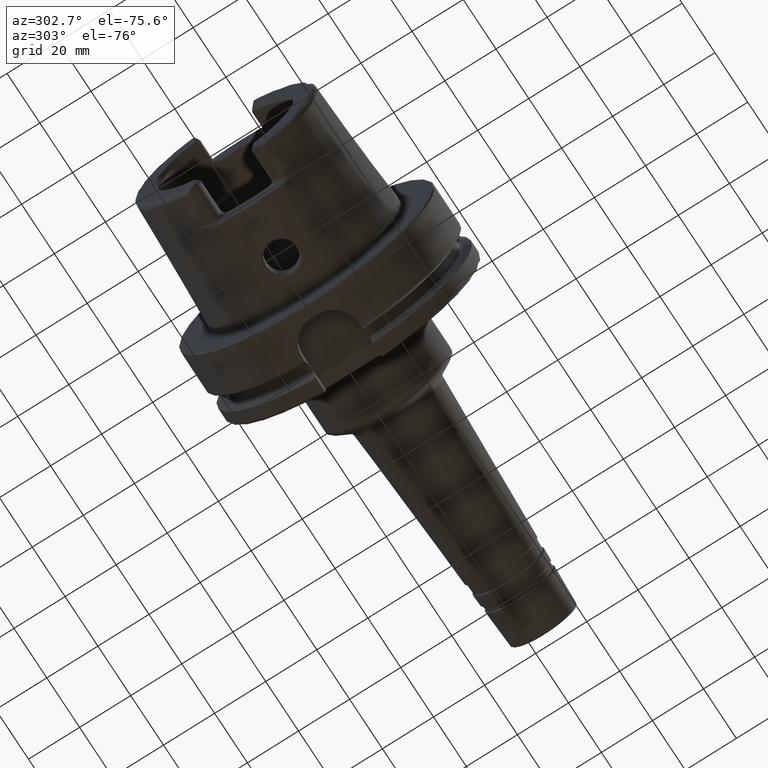
[diagram: clean part render]
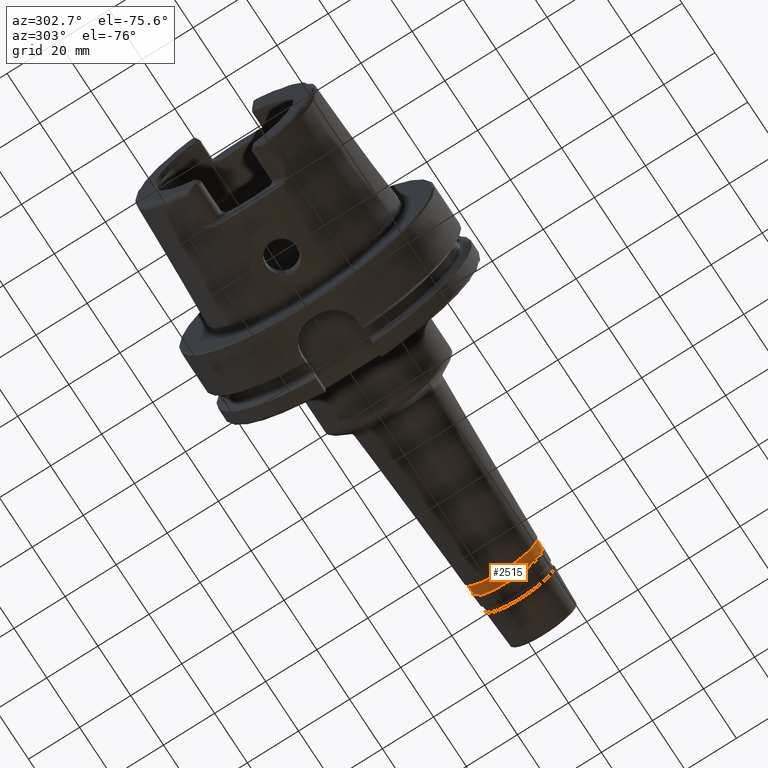
[diagram: same view with one face highlighted and labeled with its STEP entity id]
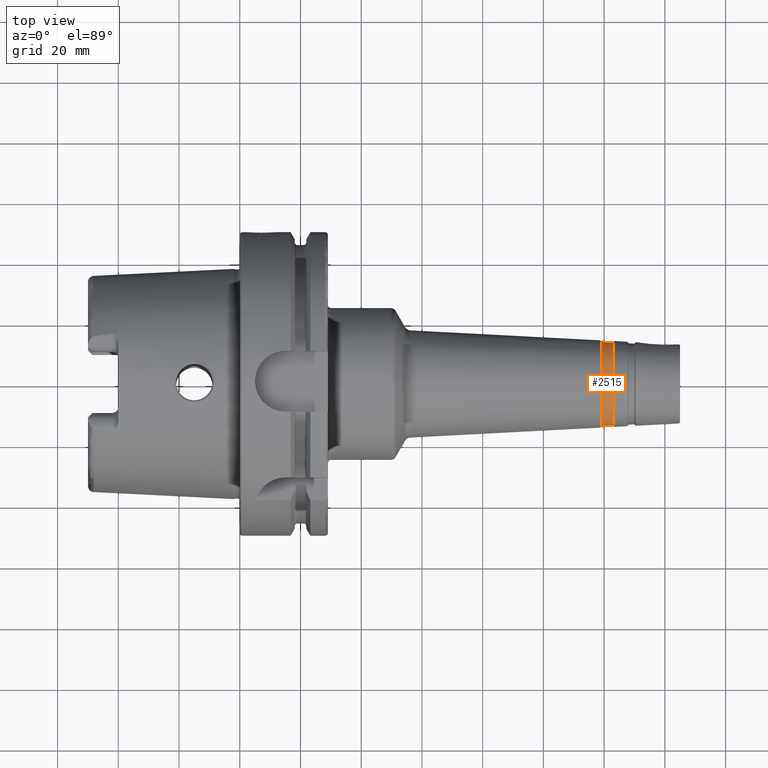
[diagram: same view with one face highlighted and labeled with its STEP entity id]
A machine part, auxiliary view. The second image highlights one B-rep face of the part: STEP entity #2515.
A second angle (top view) of the same face is appended — the face is thin or edge-on in the first view.
In plain terms, the highlighted conical surface has half-angle 3 deg.
Its self-contained STEP definition (entity closure, byte-faithful):
#96=CONICAL_SURFACE('',#2708,13.7564541224332,0.0523598775598297);
#178=LINE('',#3980,#292);
#292=VECTOR('',#3138,13.7564541224332);
#438=FACE_OUTER_BOUND('',#573,.T.);
#573=EDGE_LOOP('',(#1715,#1716,#1717,#1718,#1719,#1720,#1721,#1722));
#740=CIRCLE('',#2701,13.6578254456323);
#745=CIRCLE('',#2706,13.6578254456323);
#746=CIRCLE('',#2707,13.6578254456323);
#747=CIRCLE('',#2709,13.855082799234);
#748=CIRCLE('',#2710,13.855082799234);
#749=CIRCLE('',#2711,13.855082799234);
#971=VERTEX_POINT('',#3965);
#972=VERTEX_POINT('',#3966);
#976=VERTEX_POINT('',#3975);
#977=VERTEX_POINT('',#3979);
#978=VERTEX_POINT('',#3981);
#979=VERTEX_POINT('',#3983);
#1267=EDGE_CURVE('',#971,#972,#740,.T.);
#1272=EDGE_CURVE('',#972,#976,#745,.T.);
#1273=EDGE_CURVE('',#976,#971,#746,.T.);
#1274=EDGE_CURVE('',#976,#977,#178,.T.);
#1275=EDGE_CURVE('',#978,#977,#747,.T.);
#1276=EDGE_CURVE('',#979,#978,#748,.T.);
#1277=EDGE_CURVE('',#977,#979,#749,.T.);
#1715=ORIENTED_EDGE('',*,*,#1267,.F.);
#1716=ORIENTED_EDGE('',*,*,#1273,.F.);
#1717=ORIENTED_EDGE('',*,*,#1274,.T.);
#1718=ORIENTED_EDGE('',*,*,#1275,.F.);
#1719=ORIENTED_EDGE('',*,*,#1276,.F.);
#1720=ORIENTED_EDGE('',*,*,#1277,.F.);
#1721=ORIENTED_EDGE('',*,*,#1274,.F.);
#1722=ORIENTED_EDGE('',*,*,#1272,.F.);
#2515=ADVANCED_FACE('',(#438),#96,.T.);
#2701=AXIS2_PLACEMENT_3D('',#3967,#3122,#3123);
#2706=AXIS2_PLACEMENT_3D('',#3976,#3132,#3133);
#2707=AXIS2_PLACEMENT_3D('',#3977,#3134,#3135);
#2708=AXIS2_PLACEMENT_3D('',#3978,#3136,#3137);
#2709=AXIS2_PLACEMENT_3D('',#3982,#3139,#3140);
#2710=AXIS2_PLACEMENT_3D('',#3984,#3141,#3142);
#2711=AXIS2_PLACEMENT_3D('',#3985,#3143,#3144);
#3122=DIRECTION('center_axis',(1.,0.,0.));
#3123=DIRECTION('ref_axis',(0.,-1.,3.06161699786838E-17));
#3132=DIRECTION('center_axis',(1.,0.,0.));
#3133=DIRECTION('ref_axis',(0.,-1.,3.06161699786838E-17));
#3134=DIRECTION('center_axis',(1.,0.,0.));
#3135=DIRECTION('ref_axis',(0.,-1.,3.06161699786838E-17));
#3136=DIRECTION('center_axis',(-1.,0.,0.));
#3137=DIRECTION('ref_axis',(0.,1.,0.));
#3138=DIRECTION('',(-0.998629534754574,-0.0523359562429436,-6.40930612932369E-18));
#3139=DIRECTION('center_axis',(-1.,0.,0.));
#3140=DIRECTION('ref_axis',(0.,-1.,3.06161699786838E-17));
#3141=DIRECTION('center_axis',(-1.,0.,0.));
#3142=DIRECTION('ref_axis',(0.,-1.,3.06161699786838E-17));
#3143=DIRECTION('center_axis',(-1.,0.,0.));
#3144=DIRECTION('ref_axis',(0.,-1.,3.06161699786838E-17));
#3965=CARTESIAN_POINT('',(122.894281450576,13.6578254456323,-8.36300610765343E-16));
#3966=CARTESIAN_POINT('',(122.894281450576,-1.67260122153069E-15,13.6578254456323));
#3967=CARTESIAN_POINT('Origin',(122.894281450576,0.,-2.09075152691336E-15));
#3975=CARTESIAN_POINT('',(122.894281450576,-13.6578254456323,-1.67260122153069E-15));
#3976=CARTESIAN_POINT('Origin',(122.894281450576,0.,-2.09075152691336E-15));
#3977=CARTESIAN_POINT('Origin',(122.894281450576,0.,-2.09075152691336E-15));
#3978=CARTESIAN_POINT('Origin',(121.012334187209,0.,0.));
#3979=CARTESIAN_POINT('',(119.130386923842,-13.855082799234,-1.69675828020035E-15));
#3980=CARTESIAN_POINT('',(121.012334187209,-13.7564541224332,-1.68467975086552E-15));
#3981=CARTESIAN_POINT('',(119.130386923842,13.855082799234,-4.24189570050087E-15));
#3982=CARTESIAN_POINT('Origin',(119.130386923842,0.,-2.12094785025044E-15));
#3983=CARTESIAN_POINT('',(119.130386923842,-1.69675828020035E-15,13.855082799234));
#3984=CARTESIAN_POINT('Origin',(119.130386923842,0.,-2.12094785025044E-15));
#3985=CARTESIAN_POINT('Origin',(119.130386923842,0.,-2.12094785025044E-15));